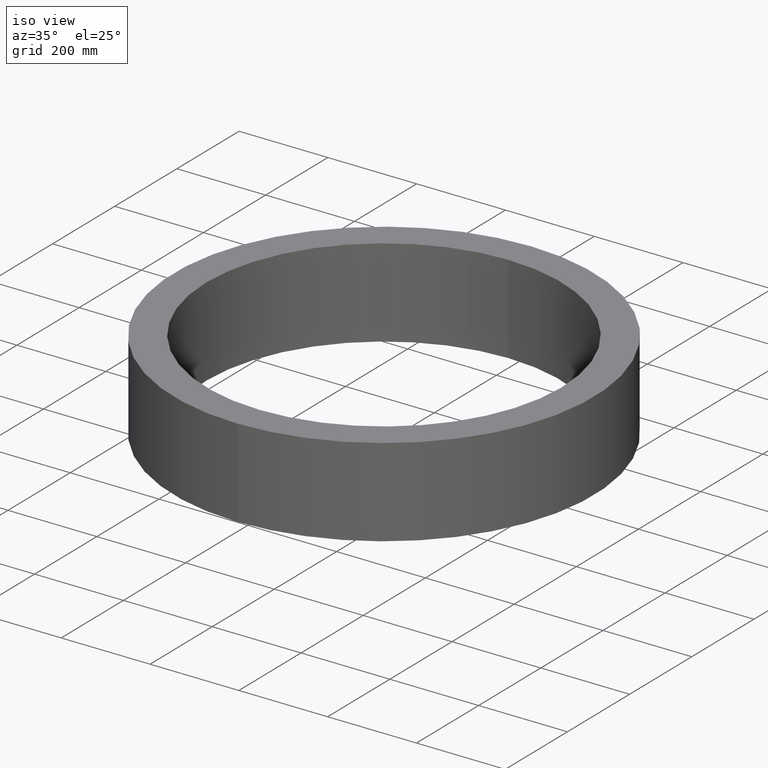
[diagram: clean part render]
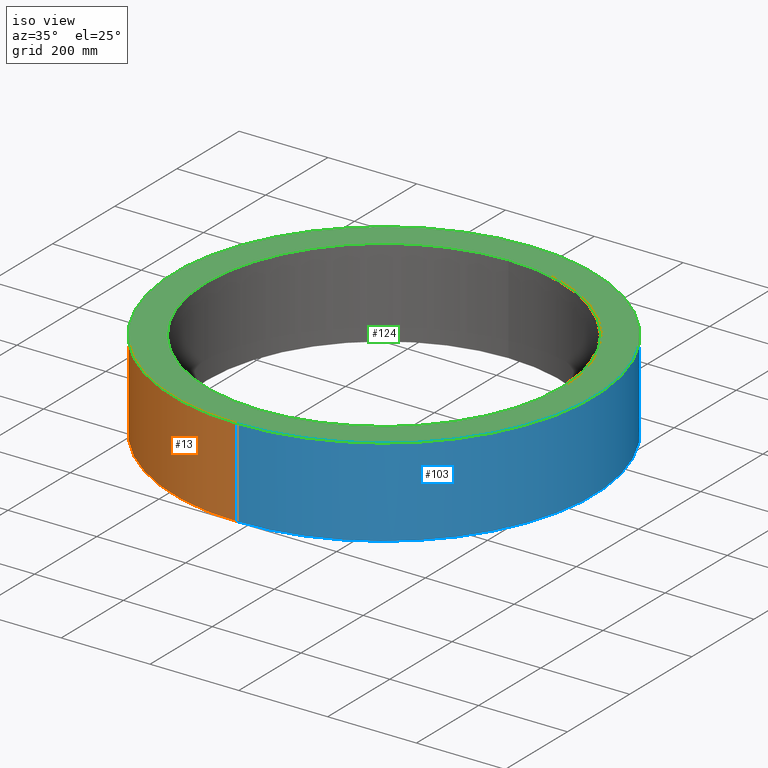
[diagram: same view with three faces highlighted in distinct colors, each labeled with its STEP entity id]
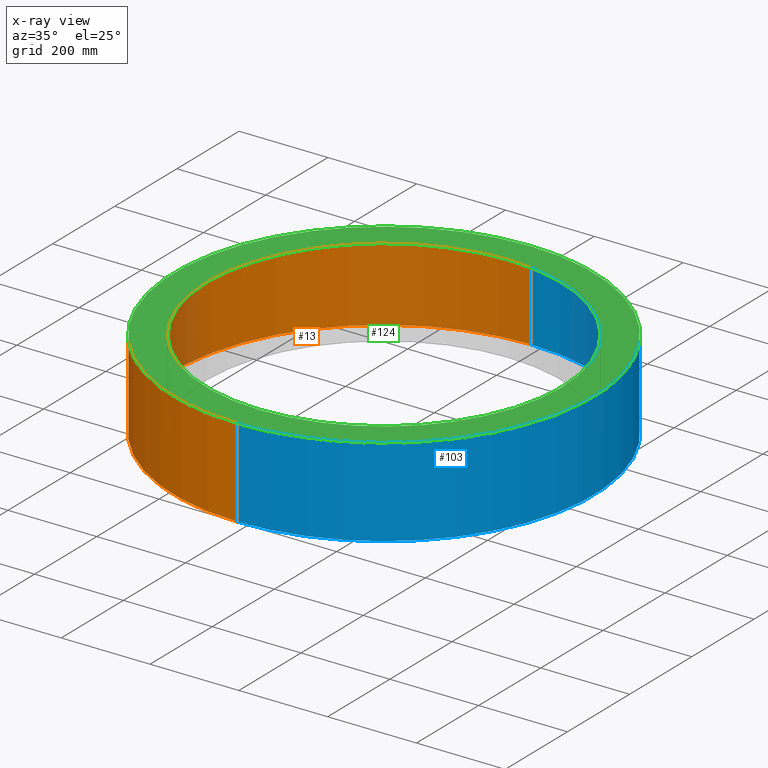
[diagram: x-ray of the same camera — body ghosted, the three highlighted faces saturated]
A machine part, iso view with three faces highlighted in distinct colors.
The next image is the same camera in x-ray (body ghosted, the three faces saturated) — at least one of them is partly hidden behind the body in this view.
Their STEP definitions:

[orange] entity #13 — the highlighted cylindrical surface (partial cylindrical patch) has radius 472.5 mm, axis along (-0, -0, -1).
#7 = FACE_OUTER_BOUND ( 'NONE', #109, .T. ) ;
#13 = ADVANCED_FACE ( 'NONE', ( #7 ), #356, .T. ) ;
#19 = ORIENTED_EDGE ( 'NONE', *, *, #120, .F. ) ;
#20 = ORIENTED_EDGE ( 'NONE', *, *, #211, .T. ) ;
#32 = DIRECTION ( 'NONE',  ( -0.0000000000000000000, -1.000000000000000000, -0.0000000000000000000 ) ) ;
#36 = CIRCLE ( 'NONE', #149, 472.5000000000000568 ) ;
#39 = VERTEX_POINT ( 'NONE', #303 ) ;
#58 = CARTESIAN_POINT ( 'NONE',  ( 0.0000000000000000000, 200.0000000000000000, 0.0000000000000000000 ) ) ;
#61 = DIRECTION ( 'NONE',  ( 0.0000000000000000000, 0.0000000000000000000, -1.000000000000000000 ) ) ;
#65 = EDGE_CURVE ( 'NONE', #339, #217, #36, .T. ) ;
#68 = DIRECTION ( 'NONE',  ( 0.0000000000000000000, 0.0000000000000000000, 1.000000000000000000 ) ) ;
#70 = DIRECTION ( 'NONE',  ( -0.0000000000000000000, -1.000000000000000000, -0.0000000000000000000 ) ) ;
#71 = VECTOR ( 'NONE', #32, 1000.000000000000000 ) ;
#88 = DIRECTION ( 'NONE',  ( 0.0000000000000000000, 0.0000000000000000000, 1.000000000000000000 ) ) ;
#91 = CARTESIAN_POINT ( 'NONE',  ( 0.0000000000000000000, 200.0000000000000000, -472.5000000000000568 ) ) ;
#92 = DIRECTION ( 'NONE',  ( -0.0000000000000000000, -1.000000000000000000, -0.0000000000000000000 ) ) ;
#100 = CARTESIAN_POINT ( 'NONE',  ( 5.786456125971244586E-14, 0.0000000000000000000, 472.5000000000000568 ) ) ;
#109 = EDGE_LOOP ( 'NONE', ( #224, #20, #246, #19 ) ) ;
#120 = EDGE_CURVE ( 'NONE', #309, #217, #297, .T. ) ;
#140 = CIRCLE ( 'NONE', #196, 472.5000000000000568 ) ;
#149 = AXIS2_PLACEMENT_3D ( 'NONE', #242, #264, #88 ) ;
#164 = CARTESIAN_POINT ( 'NONE',  ( 0.0000000000000000000, 0.0000000000000000000, -472.5000000000000568 ) ) ;
#173 = EDGE_CURVE ( 'NONE', #39, #309, #140, .T. ) ;
#196 = AXIS2_PLACEMENT_3D ( 'NONE', #342, #201, #68 ) ;
#201 = DIRECTION ( 'NONE',  ( 0.0000000000000000000, 1.000000000000000000, 0.0000000000000000000 ) ) ;
#211 = EDGE_CURVE ( 'NONE', #39, #339, #251, .T. ) ;
#217 = VERTEX_POINT ( 'NONE', #164 ) ;
#224 = ORIENTED_EDGE ( 'NONE', *, *, #173, .F. ) ;
#242 = CARTESIAN_POINT ( 'NONE',  ( 0.0000000000000000000, 0.0000000000000000000, 0.0000000000000000000 ) ) ;
#246 = ORIENTED_EDGE ( 'NONE', *, *, #65, .T. ) ;
#251 = LINE ( 'NONE', #340, #253 ) ;
#253 = VECTOR ( 'NONE', #70, 1000.000000000000000 ) ;
#264 = DIRECTION ( 'NONE',  ( 0.0000000000000000000, 1.000000000000000000, 0.0000000000000000000 ) ) ;
#297 = LINE ( 'NONE', #91, #71 ) ;
#303 = CARTESIAN_POINT ( 'NONE',  ( 5.786456125971244586E-14, 200.0000000000000000, 472.5000000000000568 ) ) ;
#309 = VERTEX_POINT ( 'NONE', #365 ) ;
#319 = AXIS2_PLACEMENT_3D ( 'NONE', #58, #92, #61 ) ;
#339 = VERTEX_POINT ( 'NONE', #100 ) ;
#340 = CARTESIAN_POINT ( 'NONE',  ( 5.786456125971244586E-14, 200.0000000000000000, 472.5000000000000568 ) ) ;
#342 = CARTESIAN_POINT ( 'NONE',  ( 0.0000000000000000000, 200.0000000000000000, 0.0000000000000000000 ) ) ;
#356 = CYLINDRICAL_SURFACE ( 'NONE', #319, 472.5000000000000568 ) ;
#365 = CARTESIAN_POINT ( 'NONE',  ( 0.0000000000000000000, 200.0000000000000000, -472.5000000000000568 ) ) ;

[blue] entity #103 — the highlighted cylindrical surface (partial cylindrical patch) has radius 472.5 mm, axis along (-0, -0, -1).
#10 = FACE_OUTER_BOUND ( 'NONE', #126, .T. ) ;
#21 = AXIS2_PLACEMENT_3D ( 'NONE', #56, #182, #358 ) ;
#29 = CARTESIAN_POINT ( 'NONE',  ( 0.0000000000000000000, 0.0000000000000000000, 0.0000000000000000000 ) ) ;
#32 = DIRECTION ( 'NONE',  ( -0.0000000000000000000, -1.000000000000000000, -0.0000000000000000000 ) ) ;
#39 = VERTEX_POINT ( 'NONE', #303 ) ;
#41 = CIRCLE ( 'NONE', #290, 472.5000000000000568 ) ;
#50 = ORIENTED_EDGE ( 'NONE', *, *, #218, .F. ) ;
#56 = CARTESIAN_POINT ( 'NONE',  ( 0.0000000000000000000, 200.0000000000000000, 0.0000000000000000000 ) ) ;
#69 = ORIENTED_EDGE ( 'NONE', *, *, #136, .T. ) ;
#70 = DIRECTION ( 'NONE',  ( -0.0000000000000000000, -1.000000000000000000, -0.0000000000000000000 ) ) ;
#71 = VECTOR ( 'NONE', #32, 1000.000000000000000 ) ;
#84 = CIRCLE ( 'NONE', #121, 472.5000000000000568 ) ;
#87 = DIRECTION ( 'NONE',  ( 0.0000000000000000000, 0.0000000000000000000, 1.000000000000000000 ) ) ;
#91 = CARTESIAN_POINT ( 'NONE',  ( 0.0000000000000000000, 200.0000000000000000, -472.5000000000000568 ) ) ;
#100 = CARTESIAN_POINT ( 'NONE',  ( 5.786456125971244586E-14, 0.0000000000000000000, 472.5000000000000568 ) ) ;
#103 = ADVANCED_FACE ( 'NONE', ( #10 ), #361, .T. ) ;
#115 = DIRECTION ( 'NONE',  ( 0.0000000000000000000, 1.000000000000000000, 0.0000000000000000000 ) ) ;
#120 = EDGE_CURVE ( 'NONE', #309, #217, #297, .T. ) ;
#121 = AXIS2_PLACEMENT_3D ( 'NONE', #158, #250, #277 ) ;
#126 = EDGE_LOOP ( 'NONE', ( #311, #50, #276, #69 ) ) ;
#136 = EDGE_CURVE ( 'NONE', #217, #339, #41, .T. ) ;
#158 = CARTESIAN_POINT ( 'NONE',  ( 0.0000000000000000000, 200.0000000000000000, 0.0000000000000000000 ) ) ;
#164 = CARTESIAN_POINT ( 'NONE',  ( 0.0000000000000000000, 0.0000000000000000000, -472.5000000000000568 ) ) ;
#182 = DIRECTION ( 'NONE',  ( -0.0000000000000000000, -1.000000000000000000, -0.0000000000000000000 ) ) ;
#211 = EDGE_CURVE ( 'NONE', #39, #339, #251, .T. ) ;
#217 = VERTEX_POINT ( 'NONE', #164 ) ;
#218 = EDGE_CURVE ( 'NONE', #309, #39, #84, .T. ) ;
#250 = DIRECTION ( 'NONE',  ( 0.0000000000000000000, 1.000000000000000000, 0.0000000000000000000 ) ) ;
#251 = LINE ( 'NONE', #340, #253 ) ;
#253 = VECTOR ( 'NONE', #70, 1000.000000000000000 ) ;
#276 = ORIENTED_EDGE ( 'NONE', *, *, #120, .T. ) ;
#277 = DIRECTION ( 'NONE',  ( 0.0000000000000000000, 0.0000000000000000000, 1.000000000000000000 ) ) ;
#290 = AXIS2_PLACEMENT_3D ( 'NONE', #29, #115, #87 ) ;
#297 = LINE ( 'NONE', #91, #71 ) ;
#303 = CARTESIAN_POINT ( 'NONE',  ( 5.786456125971244586E-14, 200.0000000000000000, 472.5000000000000568 ) ) ;
#309 = VERTEX_POINT ( 'NONE', #365 ) ;
#311 = ORIENTED_EDGE ( 'NONE', *, *, #211, .F. ) ;
#339 = VERTEX_POINT ( 'NONE', #100 ) ;
#340 = CARTESIAN_POINT ( 'NONE',  ( 5.786456125971244586E-14, 200.0000000000000000, 472.5000000000000568 ) ) ;
#358 = DIRECTION ( 'NONE',  ( 0.0000000000000000000, 0.0000000000000000000, -1.000000000000000000 ) ) ;
#361 = CYLINDRICAL_SURFACE ( 'NONE', #21, 472.5000000000000568 ) ;
#365 = CARTESIAN_POINT ( 'NONE',  ( 0.0000000000000000000, 200.0000000000000000, -472.5000000000000568 ) ) ;

[green] entity #124 — the highlighted planar face has unit normal (0, 0, 1).
#14 = DIRECTION ( 'NONE',  ( 0.0000000000000000000, 0.0000000000000000000, 1.000000000000000000 ) ) ;
#35 = EDGE_CURVE ( 'NONE', #194, #213, #77, .T. ) ;
#39 = VERTEX_POINT ( 'NONE', #303 ) ;
#43 = CARTESIAN_POINT ( 'NONE',  ( 0.0000000000000000000, 200.0000000000000000, -400.0000000000000000 ) ) ;
#68 = DIRECTION ( 'NONE',  ( 0.0000000000000000000, 0.0000000000000000000, 1.000000000000000000 ) ) ;
#77 = CIRCLE ( 'NONE', #350, 400.0000000000000000 ) ;
#84 = CIRCLE ( 'NONE', #121, 472.5000000000000568 ) ;
#101 = EDGE_LOOP ( 'NONE', ( #234, #334 ) ) ;
#102 = EDGE_CURVE ( 'NONE', #213, #194, #306, .T. ) ;
#121 = AXIS2_PLACEMENT_3D ( 'NONE', #158, #250, #277 ) ;
#123 = CARTESIAN_POINT ( 'NONE',  ( 0.0000000000000000000, 200.0000000000000000, 0.0000000000000000000 ) ) ;
#124 = ADVANCED_FACE ( 'NONE', ( #151, #289 ), #178, .T. ) ;
#140 = CIRCLE ( 'NONE', #196, 472.5000000000000568 ) ;
#151 = FACE_OUTER_BOUND ( 'NONE', #245, .T. ) ;
#158 = CARTESIAN_POINT ( 'NONE',  ( 0.0000000000000000000, 200.0000000000000000, 0.0000000000000000000 ) ) ;
#173 = EDGE_CURVE ( 'NONE', #39, #309, #140, .T. ) ;
#178 = PLANE ( 'NONE',  #183 ) ;
#183 = AXIS2_PLACEMENT_3D ( 'NONE', #260, #238, #258 ) ;
#186 = ORIENTED_EDGE ( 'NONE', *, *, #173, .T. ) ;
#188 = DIRECTION ( 'NONE',  ( 0.0000000000000000000, 1.000000000000000000, 0.0000000000000000000 ) ) ;
#193 = CARTESIAN_POINT ( 'NONE',  ( 4.898587196589412868E-14, 200.0000000000000000, 400.0000000000000000 ) ) ;
#194 = VERTEX_POINT ( 'NONE', #193 ) ;
#196 = AXIS2_PLACEMENT_3D ( 'NONE', #342, #201, #68 ) ;
#201 = DIRECTION ( 'NONE',  ( 0.0000000000000000000, 1.000000000000000000, 0.0000000000000000000 ) ) ;
#208 = DIRECTION ( 'NONE',  ( 0.0000000000000000000, 0.0000000000000000000, 1.000000000000000000 ) ) ;
#213 = VERTEX_POINT ( 'NONE', #43 ) ;
#214 = DIRECTION ( 'NONE',  ( 0.0000000000000000000, 1.000000000000000000, 0.0000000000000000000 ) ) ;
#218 = EDGE_CURVE ( 'NONE', #309, #39, #84, .T. ) ;
#234 = ORIENTED_EDGE ( 'NONE', *, *, #102, .F. ) ;
#238 = DIRECTION ( 'NONE',  ( 0.0000000000000000000, 1.000000000000000000, 0.0000000000000000000 ) ) ;
#245 = EDGE_LOOP ( 'NONE', ( #274, #186 ) ) ;
#250 = DIRECTION ( 'NONE',  ( 0.0000000000000000000, 1.000000000000000000, 0.0000000000000000000 ) ) ;
#258 = DIRECTION ( 'NONE',  ( 0.0000000000000000000, -0.0000000000000000000, 1.000000000000000000 ) ) ;
#260 = CARTESIAN_POINT ( 'NONE',  ( 0.0000000000000000000, 200.0000000000000000, 0.0000000000000000000 ) ) ;
#274 = ORIENTED_EDGE ( 'NONE', *, *, #218, .T. ) ;
#277 = DIRECTION ( 'NONE',  ( 0.0000000000000000000, 0.0000000000000000000, 1.000000000000000000 ) ) ;
#289 = FACE_BOUND ( 'NONE', #101, .T. ) ;
#296 = CARTESIAN_POINT ( 'NONE',  ( 0.0000000000000000000, 200.0000000000000000, 0.0000000000000000000 ) ) ;
#298 = AXIS2_PLACEMENT_3D ( 'NONE', #296, #214, #208 ) ;
#303 = CARTESIAN_POINT ( 'NONE',  ( 5.786456125971244586E-14, 200.0000000000000000, 472.5000000000000568 ) ) ;
#306 = CIRCLE ( 'NONE', #298, 400.0000000000000000 ) ;
#309 = VERTEX_POINT ( 'NONE', #365 ) ;
#334 = ORIENTED_EDGE ( 'NONE', *, *, #35, .F. ) ;
#342 = CARTESIAN_POINT ( 'NONE',  ( 0.0000000000000000000, 200.0000000000000000, 0.0000000000000000000 ) ) ;
#350 = AXIS2_PLACEMENT_3D ( 'NONE', #123, #188, #14 ) ;
#365 = CARTESIAN_POINT ( 'NONE',  ( 0.0000000000000000000, 200.0000000000000000, -472.5000000000000568 ) ) ;